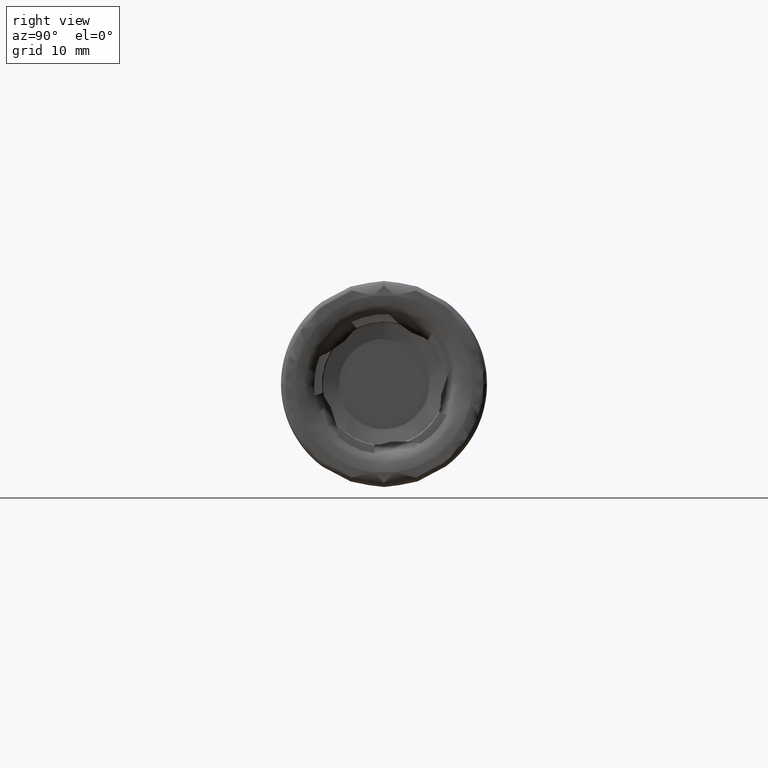
[diagram: clean part render]
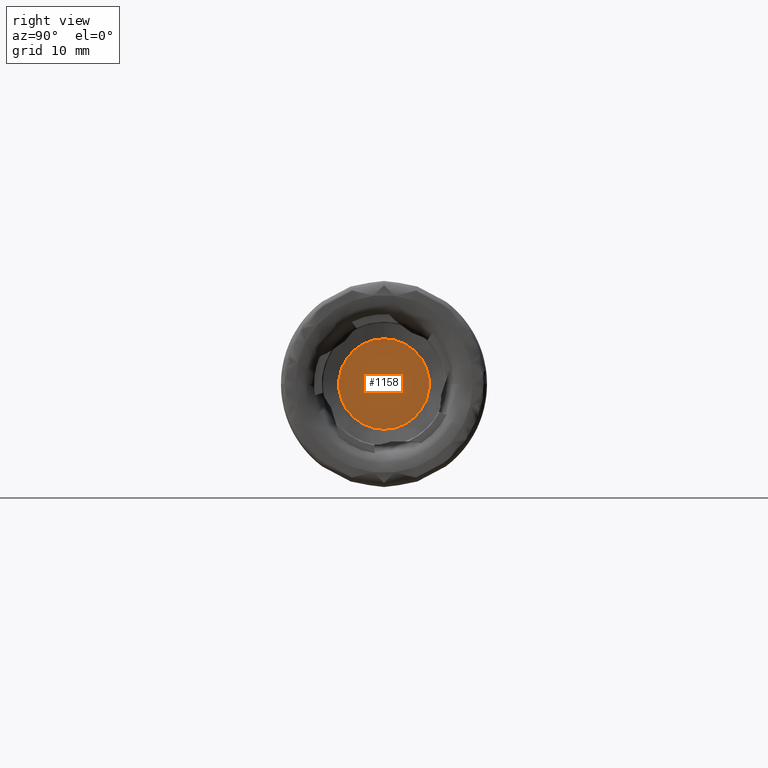
[diagram: same view with one face highlighted and labeled with its STEP entity id]
A machine part, right view. The second image highlights one B-rep face of the part: STEP entity #1158.
In plain terms, the highlighted planar face has unit normal (1, 0, -0).
Its self-contained STEP definition (entity closure, byte-faithful):
#40 = CARTESIAN_POINT ( 'NONE',  ( -1.399999999999999900, 0.0000000000000000000, -7.030000000000000200 ) ) ;
#91 = CARTESIAN_POINT ( 'NONE',  ( -1.399999999999999900, 1.014007549694008500E-015, 7.030000000000000200 ) ) ;
#721 = VERTEX_POINT ( 'NONE', #40 ) ;
#730 = VERTEX_POINT ( 'NONE', #91 ) ;
#822 = EDGE_CURVE ( 'NONE', #730, #721, #2835, .T. ) ;
#1158 = ADVANCED_FACE ( 'NONE', ( #3099 ), #5953, .T. ) ;
#1751 = ORIENTED_EDGE ( 'NONE', *, *, #1941, .T. ) ;
#1752 = ORIENTED_EDGE ( 'NONE', *, *, #822, .T. ) ;
#1941 = EDGE_CURVE ( 'NONE', #721, #730, #6894, .T. ) ;
#2096 = AXIS2_PLACEMENT_3D ( 'NONE', #3834, #3835, #3836 ) ;
#2416 = EDGE_LOOP ( 'NONE', ( #1751, #1752 ) ) ;
#2835 = CIRCLE ( 'NONE', #2096, 7.030000000000000200 ) ;
#3099 = FACE_OUTER_BOUND ( 'NONE', #2416, .T. ) ;
#3834 = CARTESIAN_POINT ( 'NONE',  ( -1.399999999999999900, 0.0000000000000000000, 0.0000000000000000000 ) ) ;
#3835 = DIRECTION ( 'NONE',  ( 1.000000000000000000, -0.0000000000000000000, -0.0000000000000000000 ) ) ;
#3836 = DIRECTION ( 'NONE',  ( 0.0000000000000000000, 0.0000000000000000000, -1.000000000000000000 ) ) ;
#5594 = AXIS2_PLACEMENT_3D ( 'NONE', #5914, #5955, #5956 ) ;
#5668 = AXIS2_PLACEMENT_3D ( 'NONE', #7464, #7465, #7466 ) ;
#5914 = CARTESIAN_POINT ( 'NONE',  ( -1.399999999999999200, -1.158722531986733500E-014, 0.0000000000000000000 ) ) ;
#5953 = PLANE ( 'NONE',  #5594 ) ;
#5955 = DIRECTION ( 'NONE',  ( 1.000000000000000000, 0.0000000000000000000, -0.0000000000000000000 ) ) ;
#5956 = DIRECTION ( 'NONE',  ( -0.0000000000000000000, 0.0000000000000000000, -1.000000000000000000 ) ) ;
#6894 = CIRCLE ( 'NONE', #5668, 7.030000000000000200 ) ;
#7464 = CARTESIAN_POINT ( 'NONE',  ( -1.399999999999999900, 0.0000000000000000000, 0.0000000000000000000 ) ) ;
#7465 = DIRECTION ( 'NONE',  ( 1.000000000000000000, -0.0000000000000000000, -0.0000000000000000000 ) ) ;
#7466 = DIRECTION ( 'NONE',  ( 0.0000000000000000000, 0.0000000000000000000, -1.000000000000000000 ) ) ;